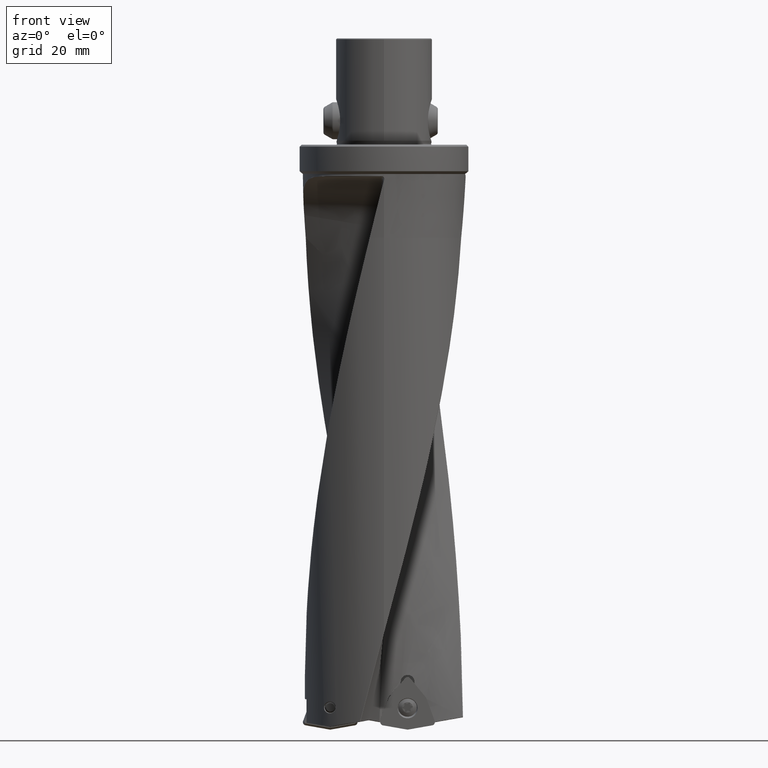
[diagram: clean part render]
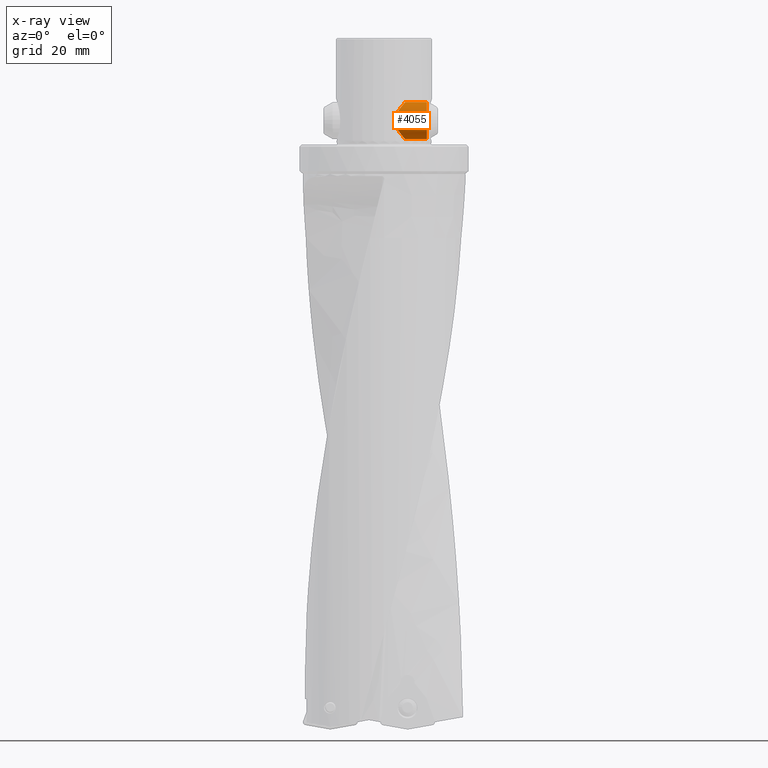
[diagram: x-ray — body ghosted, one internal face saturated and labeled with its STEP entity id]
A machine part, front view, then the same camera in x-ray: the body is ghosted and one INTERNAL B-rep face — a face not visible from any outside direction — is saturated and labeled: STEP entity #4055.
In plain terms, the highlighted cylindrical surface (edge-blend (fillet) strip) has radius 7 mm, axis along (-1, 0, -0).
Its self-contained STEP definition (entity closure, byte-faithful):
#1873=EDGE_CURVE('NONE',#3443,#4059,#5415,.F.);
#1951=VERTEX_POINT('NONE',#5498);
#2383=EDGE_CURVE('NONE',#2401,#1951,#5982,.T.);
#2401=VERTEX_POINT('NONE',#6001);
#3443=VERTEX_POINT('NONE',#7154);
#3677=EDGE_CURVE('NONE',#1951,#3443,#7412,.T.);
#3917=EDGE_CURVE('NONE',#2401,#4059,#7680,.T.);
#4055=ADVANCED_FACE('NONE',(#7833),#7834,.F.);
#4059=VERTEX_POINT('NONE',#7838);
#5415=B_SPLINE_CURVE_WITH_KNOTS('',3,(#9371,#9372,#9373,#9374,#9375,#9376,#9377,#9378,#9379,#9380,#9381,#9382,#9383,#9384,#9385,#9386,#9387,#9388,#9389,#9390,#9391,#9392,#9393,#9394,#9395,#9396,#9397,#9398,#9399,#9400,#9401,#9402,#9403,#9404,#9405,#9406,#9407,#9408,#9409),.UNSPECIFIED.,.F.,.F.,(4,2,2,2,2,2,2,2,2,3,2,2,2,2,2,2,2,2,4),(-13.0261231570802,-11.6170748413418,-10.2080265256034,-8.79897820986499,-7.3899298941266,-5.9808815783882,-4.48566118379115,-2.9904407891941,-1.49522039459705,0.0,1.49522039459705,2.9904407891941,4.48566118379115,5.98088157838819,7.38992989412659,8.79897820986499,10.2080265256034,11.6170748413418,13.0261231570802),.UNSPECIFIED.);
#5498=CARTESIAN_POINT('',(16.1293556529821,-3.8408194869494E-014,16.0));
#5982=CIRCLE('',#15626,7.0);
#6001=CARTESIAN_POINT('',(16.1293556529821,-2.28482866419656E-014,2.00000000000004));
#7154=CARTESIAN_POINT('',(8.0,-1.73749903353837E-014,16.0));
#7412=LINE('',#34386,#34387);
#7680=LINE('',#36837,#36838);
#7833=FACE_OUTER_BOUND('',#38497,.T.);
#7834=CYLINDRICAL_SURFACE('',#38498,7.0);
#7838=CARTESIAN_POINT('',(8.0,-1.99285032920216E-014,2.00000000000004));
#9371=CARTESIAN_POINT('',(7.8742940532998,1.41261925590989,2.1440167125472));
#9372=CARTESIAN_POINT('',(7.95788060027424,0.946686878016384,2.04801515855551));
#9373=CARTESIAN_POINT('',(8.0,0.469682771912781,2.00000000000004));
#9374=CARTESIAN_POINT('',(8.0,-0.469682771912817,2.00000000000004));
#9375=CARTESIAN_POINT('',(7.95788060027424,-0.946686878016421,2.04801515855551));
#9376=CARTESIAN_POINT('',(7.79070750632535,-1.87855163380344,2.2400182665389));
#9377=CARTESIAN_POINT('',(7.66573577056591,-2.33344473878203,2.38392003769998));
#9378=CARTESIAN_POINT('',(7.35047035995109,-3.19046270485161,2.75192641244782));
#9379=CARTESIAN_POINT('',(7.15992269108926,-3.59363227200831,2.97636181017352));
#9380=CARTESIAN_POINT('',(6.74134251891315,-4.32816206773421,3.48045082936047));
#9381=CARTESIAN_POINT('',(6.51341901027049,-4.6595905010221,3.76009556441045));
#9382=CARTESIAN_POINT('',(6.04241087484835,-5.25764934098913,4.35815440437749));
#9383=CARTESIAN_POINT('',(5.78027369773599,-5.54264922853153,4.70126538650684));
#9384=CARTESIAN_POINT('',(5.25299196402673,-6.04471668598793,5.44170265714782));
#9385=CARTESIAN_POINT('',(4.9877075599233,-6.26200045326762,5.83878271760427));
#9386=CARTESIAN_POINT('',(4.50503962216916,-6.61774142834713,6.67375438378003));
#9387=CARTESIAN_POINT('',(4.28769544564269,-6.75646986104508,7.11110425267603));
#9388=CARTESIAN_POINT('',(3.97082865492433,-6.94742665346326,8.02476929766324));
#9389=CARTESIAN_POINT('',(3.87298334620741,-7.00000000000001,8.50159320180101));
#9390=CARTESIAN_POINT('',(3.87298334620741,-7.0,9.00000000000003));
#9391=CARTESIAN_POINT('',(3.87298334620741,-7.0,9.49840679819905));
#9392=CARTESIAN_POINT('',(3.97082865492433,-6.94742665346326,9.97523070233683));
#9393=CARTESIAN_POINT('',(4.2876954456427,-6.75646986104508,10.888895747324));
#9394=CARTESIAN_POINT('',(4.50503962216916,-6.61774142834713,11.32624561622));
#9395=CARTESIAN_POINT('',(4.9877075599233,-6.26200045326762,12.1612172823958));
#9396=CARTESIAN_POINT('',(5.25299196402674,-6.04471668598793,12.5582973428522));
#9397=CARTESIAN_POINT('',(5.78027369773599,-5.54264922853154,13.2987346134932));
#9398=CARTESIAN_POINT('',(6.04241087484835,-5.25764934098913,13.6418455956226));
#9399=CARTESIAN_POINT('',(6.51341901027049,-4.6595905010221,14.2399044355896));
#9400=CARTESIAN_POINT('',(6.74134251891315,-4.32816206773422,14.5195491706396));
#9401=CARTESIAN_POINT('',(7.15992269108926,-3.59363227200831,15.0236381898265));
#9402=CARTESIAN_POINT('',(7.35047035995109,-3.1904627048516,15.2480735875523));
#9403=CARTESIAN_POINT('',(7.66573577056591,-2.33344473878202,15.6160799623001));
#9404=CARTESIAN_POINT('',(7.79070750632535,-1.87855163380344,15.7599817334612));
#9405=CARTESIAN_POINT('',(7.95788060027424,-0.946686878016423,15.9519848414446));
#9406=CARTESIAN_POINT('',(8.0,-0.469682771912818,16.0));
#9407=CARTESIAN_POINT('',(8.0,0.46968277191278,16.0));
#9408=CARTESIAN_POINT('',(7.95788060027424,0.946686878016385,15.9519848414446));
#9409=CARTESIAN_POINT('',(7.8742940532998,1.41261925590989,15.8559832874529));
#15626=AXIS2_PLACEMENT_3D('',#53312,#53313,#53314);
#34386=CARTESIAN_POINT('',(-30.2723165328771,7.2086266653236E-014,16.0));
#34387=VECTOR('',#54946,1000.0);
#36837=CARTESIAN_POINT('',(-30.2723165328771,7.29434911009116E-014,2.00000000000004));
#36838=VECTOR('',#55273,1000.0);
#38497=EDGE_LOOP('',(#55455,#55456,#55457,#55458));
#38498=AXIS2_PLACEMENT_3D('',#55459,#55460,#55461);
#53312=CARTESIAN_POINT('',(16.1293556529821,-3.8408194869494E-014,9.00000000000003));
#53313=DIRECTION('',(-1.0,2.38126033648423E-015,0.0));
#53314=DIRECTION('',(0.0,0.0,1.0));
#54946=DIRECTION('',(-1.0,2.38126033648423E-015,0.0));
#55273=DIRECTION('',(-1.0,2.38126033648423E-015,0.0));
#55455=ORIENTED_EDGE('',*,*,#2383,.F.);
#55456=ORIENTED_EDGE('',*,*,#3917,.T.);
#55457=ORIENTED_EDGE('',*,*,#1873,.F.);
#55458=ORIENTED_EDGE('',*,*,#3677,.F.);
#55459=CARTESIAN_POINT('',(-30.2723165328771,7.2086266653236E-014,9.00000000000003));
#55460=DIRECTION('',(-1.0,2.38126033648423E-015,-0.0));
#55461=DIRECTION('',(0.0,0.0,1.0));